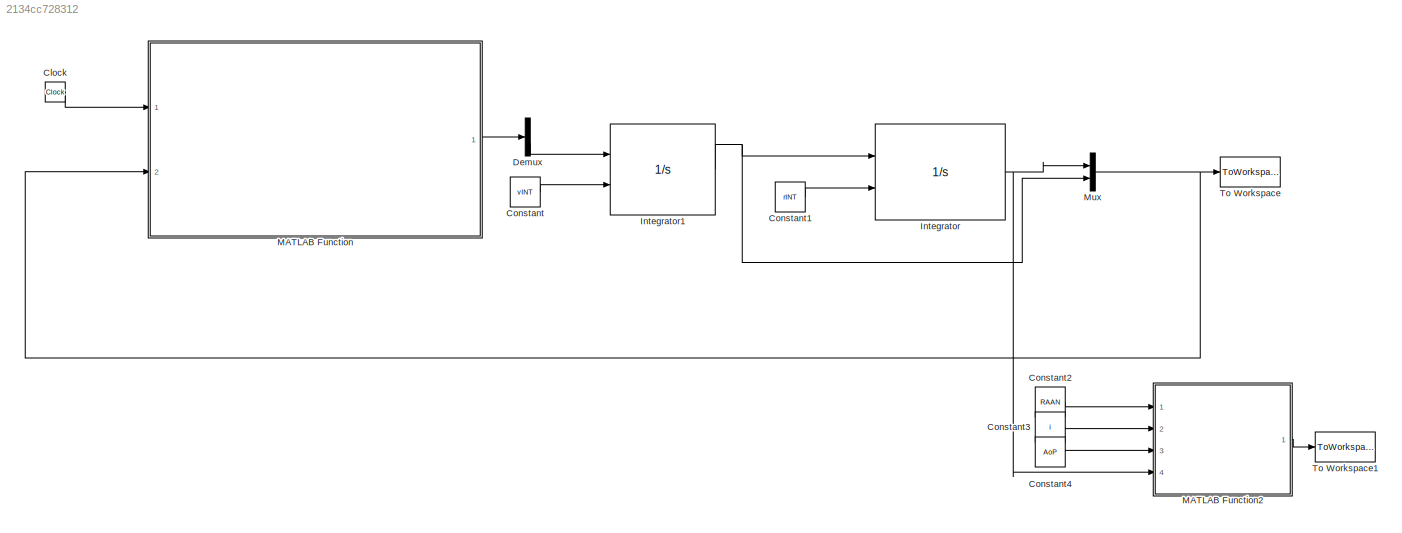
MODEL slx_2134cc728312
KIND model
CONFIG AbsTol = 1e-9
CONFIG EnableMultiTasking = off
CONFIG FixedStep = auto
CONFIG MaxStep = 60
CONFIG MinStep = auto
CONFIG RelTol = 1e-6
CONFIG SampleTimeConstraint = Unconstrained
CONFIG Solver = ode113
CONFIG SolverName = ode113
CONFIG StartTime = 0.0
CONFIG StopTime = .5*86400
BLOCK [Clock] Clock
BLOCK [Constant] Constant
  Value = vINT
BLOCK [Constant] Constant1
  Value = rINT
BLOCK [Constant] Constant2
  Value = RAAN
BLOCK [Constant] Constant3
  Value = i
BLOCK [Constant] Constant4
  Value = AoP
BLOCK [Demux] Demux
  DisplayOption = bar
  Outputs = 2
  Ports = [1, 2]
BLOCK [Integrator] Integrator
  InitialConditionSource = external
  Ports = [2, 1]
BLOCK [Integrator] Integrator1
  InitialConditionSource = external
  Ports = [2, 1]
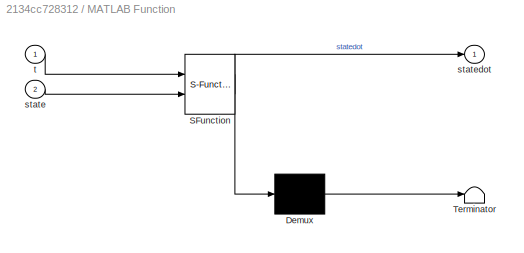
BLOCK [SubSystem] MATLAB Function
  ErrorFcn = Stateflow.Translate.translate
  PermitHierarchicalResolution = ExplicitOnly
  Ports = [2, 1]
  RequestExecContextInheritance = off
  SFBlockType = MATLAB Function
  TreatAsAtomicUnit = on
  Variant = off
BLOCK [Demux] MATLAB Function/ Demux 
  Outputs = 1
  Ports = [1, 1]
BLOCK [S-Function] MATLAB Function/ SFunction 
  EnableBusSupport = on
  FunctionName = sf_sfun
  PortCounts = [2 2]
  Ports = [2, 2]
  SFcnIsStateOwnerBlock = off
  SFunctionDeploymentMode = off
  Tag = Stateflow S-Function dragEffects 2
BLOCK [Terminator] MATLAB Function/ Terminator 
BLOCK [Inport] MATLAB Function/state
  IconDisplay = Port number
  Port = 2
BLOCK [Outport] MATLAB Function/statedot
  IconDisplay = Port number
BLOCK [Inport] MATLAB Function/t
  IconDisplay = Port number
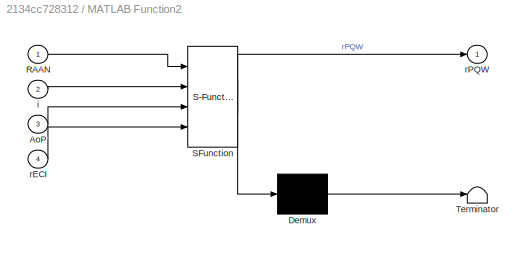
BLOCK [SubSystem] MATLAB Function2
  ErrorFcn = Stateflow.Translate.translate
  PermitHierarchicalResolution = ExplicitOnly
  Ports = [4, 1]
  RequestExecContextInheritance = off
  SFBlockType = MATLAB Function
  TreatAsAtomicUnit = on
  Variant = off
BLOCK [Demux] MATLAB Function2/ Demux 
  Outputs = 1
  Ports = [1, 1]
BLOCK [S-Function] MATLAB Function2/ SFunction 
  EnableBusSupport = on
  FunctionName = sf_sfun
  PortCounts = [4 2]
  Ports = [4, 2]
  SFcnIsStateOwnerBlock = off
  SFunctionDeploymentMode = off
  Tag = Stateflow S-Function dragEffects 3
BLOCK [Terminator] MATLAB Function2/ Terminator 
BLOCK [Inport] MATLAB Function2/AoP
  IconDisplay = Port number
  Port = 3
BLOCK [Inport] MATLAB Function2/RAAN
  IconDisplay = Port number
BLOCK [Inport] MATLAB Function2/i
  IconDisplay = Port number
  Port = 2
BLOCK [Inport] MATLAB Function2/rECI
  IconDisplay = Port number
  Port = 4
BLOCK [Outport] MATLAB Function2/rPQW
  IconDisplay = Port number
BLOCK [Mux] Mux
  DisplayOption = bar
  Inputs = 2
  Ports = [2, 1]
BLOCK [ToWorkspace] To Workspace
  FixptAsFi = on
  MaxDataPoints = inf
  Ports = [1]
  SampleTime = -1
  Save2DSignal = 3-D array (concatenate along third dimension)
  VariableName = stateout
BLOCK [ToWorkspace] To Workspace1
  FixptAsFi = on
  MaxDataPoints = inf
  Ports = [1]
  SampleTime = -1
  Save2DSignal = 3-D array (concatenate along third dimension)
  VariableName = rPQWout
LINE Clock:1 -> MATLAB Function:1
LINE Constant1:1 -> Integrator:2
LINE Constant2:1 -> MATLAB Function2:1
LINE Constant3:1 -> MATLAB Function2:2
LINE Constant4:1 -> MATLAB Function2:3
LINE Constant:1 -> Integrator1:2
LINE Demux:2 -> Integrator1:1
NET Integrator1:1 -> Integrator:1, Mux:2
NET Integrator:1 -> MATLAB Function2:4, Mux:1
LINE MATLAB Function2:1 -> To Workspace1:1
LINE MATLAB Function:1 -> Demux:1
NET Mux:1 -> MATLAB Function:2, To Workspace:1
note: NET lines group one-source signal fan-out (src -> all destinations, sorted); 1:1 wires keep LINE
CHART MATLAB Function states=1 transitions=1
  STATE_LABEL 'eML_blk_kernel()'
  STATE_LABEL 'SCRIPT:\nfunction statedot = timederivdrag(t,state)\n\nstatedot = zeros(6,1);\nstatedot(1:3) = state(4:6);\n\n\nstatedot(4:6) = (3.986E5 .* -state(1:3)) / norm(state(1:3))^3;\n\nCd = 2.3;\nM = 1500;\nA = 2E-5;\n\nh = norm(state(1:3));\np0 = 1.225E9;\nH = 10;\nh0 = 6378.137;\n\np = p0 * exp(-((h - h0) / H));\nB = Cd * A / M;\nvrel = state(4:6) - cross([0; 0; 2*pi/86400],state(1:3));\n\nfdrag = -0.5 .* B .* p .* norm(vre...<+74ch>'
CHART MATLAB Function2 states=1 transitions=1
  STATE_LABEL 'eML_blk_kernel()'
  STATE_LABEL 'SCRIPT:\nfunction rPQW = rIJK2rPQW(RAAN, i, AoP, rECI)\n\nROM = [cos(-RAAN), sin(-RAAN), 0; -sin(-RAAN), cos(-RAAN), 0; 0, 0, 1];\nRi = [1, 0, 0; 0, cos(-i), sin(-i); 0, -sin(-i), cos(-i)];\nRom = [cos(-AoP), sin(-AoP), 0; -sin(-AoP), cos(-AoP), 0; 0, 0, 1];\n\nR = ROM*Ri*Rom;\nR = transpose(R);\n\nrPQW = R*rECI;\n\nend\n'
